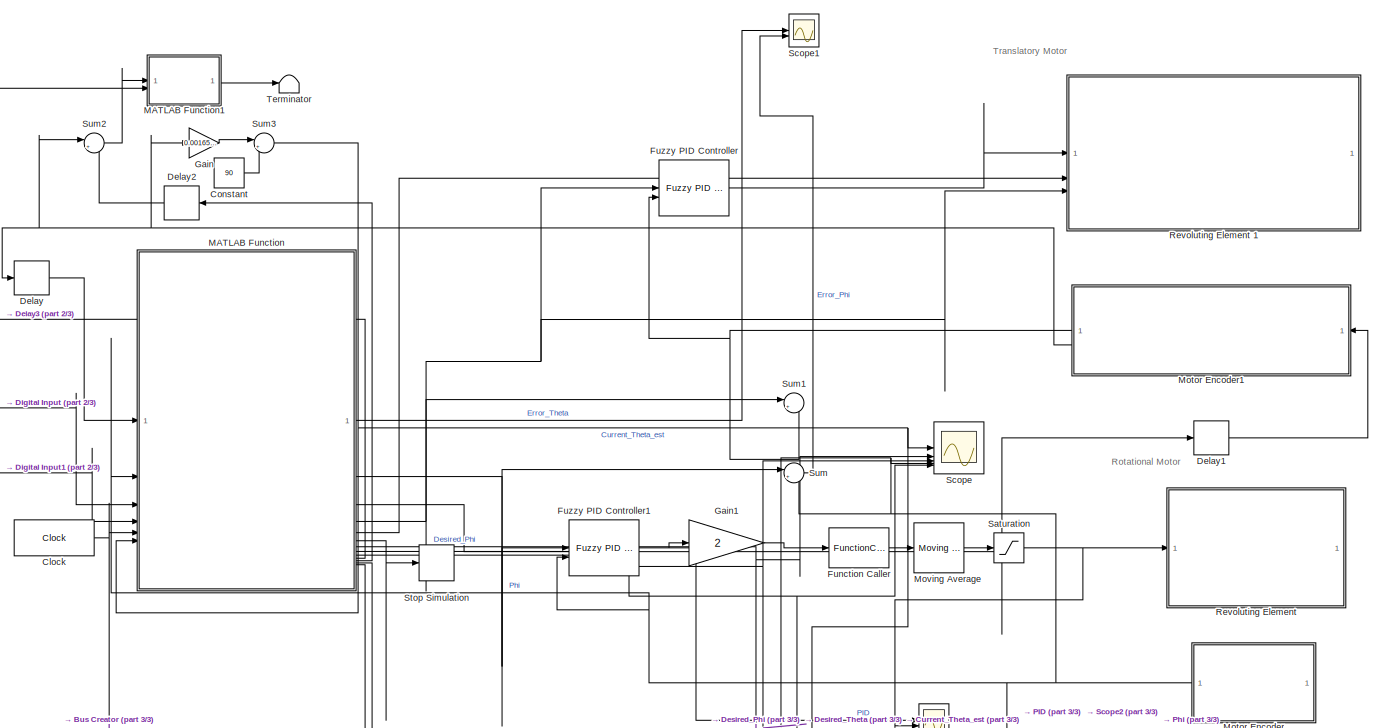
[diagram: root canvas - part 1/3, full width, middle band]
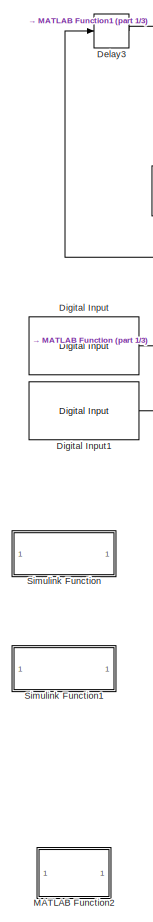
[diagram: root canvas - part 2/3, left side, full height]
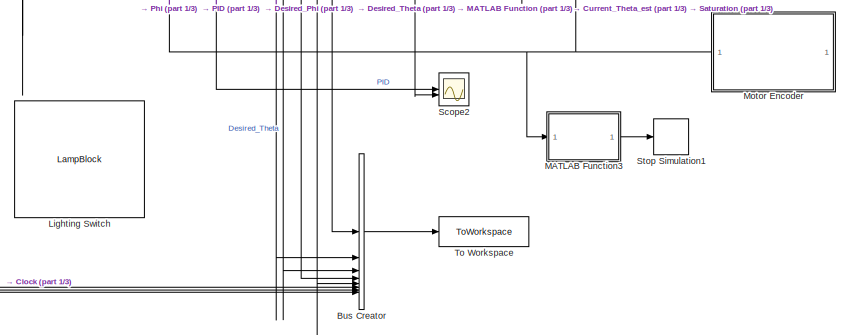
[diagram: root canvas - part 3/3, bottom right region]
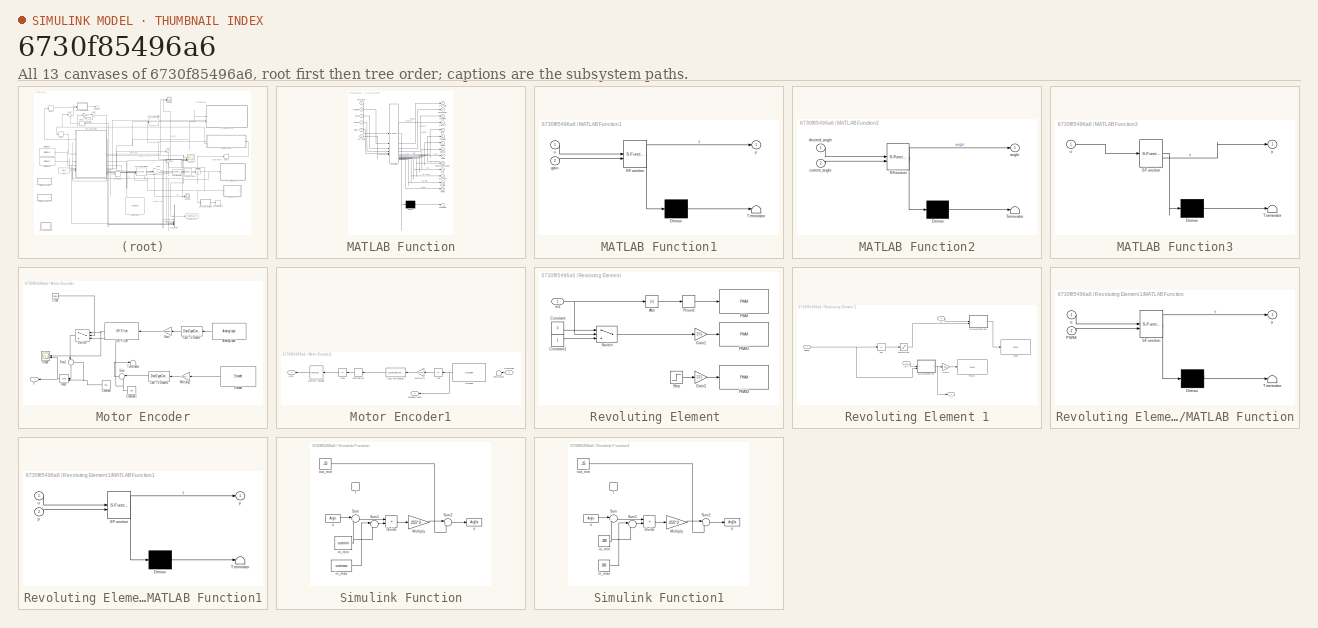
[diagram: thumbnail index - all 13 canvases of the model, root first then tree order]
MODEL slx_6730f85496a6
KIND model
CONFIG AbsTol = auto
CONFIG EnableMultiTasking = on
CONFIG FixedStep = 0.002
CONFIG MaxStep = auto
CONFIG MinStep = auto
CONFIG PreLoadFcn = % %--- PreStartFcn: initialize hold_flags.csv ---\n% csvFile = '<userpath>/Desktop/Thesis/Motor Characterization V2/FPID_COMBINED_V1/Flags/hold_flags.csv';   % ← adjust to your real path\n% fid = fopen(csvFile,'w');                      % open (or create) for overwrite\n% if fid < 0\n%     error('Cannot open flag file: %s', csvFile);\n% end\n% fprintf(fid, 'Index,SimTime_s\n');             % write heade...<+16ch>
CONFIG RelTol = 1e-3
CONFIG SampleTimeConstraint = Unconstrained
CONFIG SolverName = FixedStepDiscrete
CONFIG StartTime = 0.0
CONFIG StopTime = inf
BLOCK [BusCreator] Bus Creator
  DisplayOption = bar
  InheritFromInputs = on
  Inputs = 8
BLOCK [Clock] Clock
  DisplayTime = on
BLOCK [Constant] Constant
  Value = 90
BLOCK [Delay] Delay
  Commented = through
  DelayLength = 1
  InputPortMap = u0
BLOCK [Delay] Delay1
  DelayLength = 1
  InputPortMap = u0
BLOCK [Delay] Delay2
  DelayLength = 1
  InputPortMap = u0
  NameLocation = top
BLOCK [Delay] Delay3
  DelayLength = 1
  InputPortMap = u0
BLOCK [Reference] Digital Input  REF=arduinolib/Digital Input
  SourceBlock = arduinolib/Digital Input
  SourceType = Arduino Digital Input
BLOCK [Reference] Digital Input1  REF=arduinolib/Digital Input
  SourceBlock = arduinolib/Digital Input
  SourceType = Arduino Digital Input
BLOCK [FunctionCaller] Function Caller
  Commented = through
  FunctionPrototype = y = f(u)
  InputArgumentSpecifications = <Enter example>
  OutputArgumentSpecifications = <Enter example>
BLOCK [Reference] Fuzzy PID Controller  REF=fuzblock/Fuzzy PID Controller  (lib defined in mdl_858b3b3e7478)
  SourceBlock = fuzblock/Fuzzy PID Controller
  SourceType = Fuzzy PID Controller
BLOCK [Reference] Fuzzy PID Controller1  REF=fuzblock/Fuzzy PID Controller  (lib defined in mdl_858b3b3e7478)
  SourceBlock = fuzblock/Fuzzy PID Controller
  SourceType = Fuzzy PID Controller
BLOCK [Gain] Gain
  Gain = 0.001656075
BLOCK [Gain] Gain1
  Gain = 2
BLOCK [LampBlock] Lighting Switch
  Icon = LightingSwitch
  LabelPosition = Hide
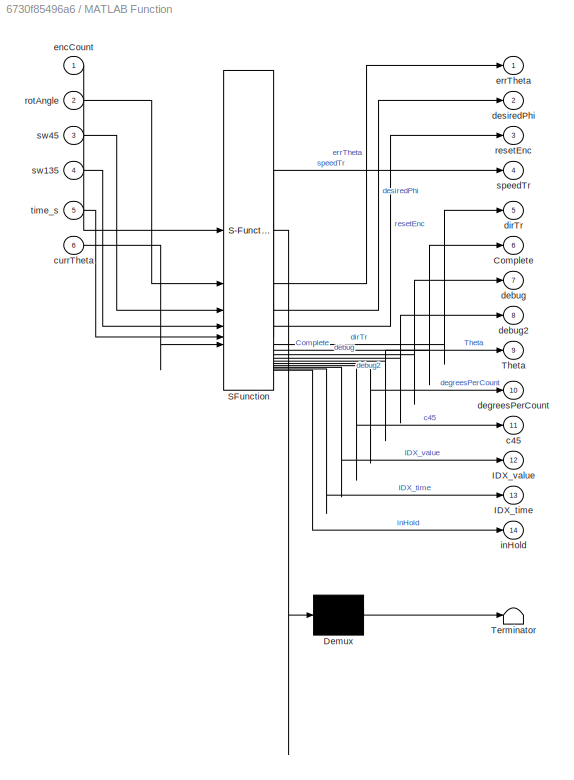
BLOCK [SubSystem] MATLAB Function
  ErrorFcn = Stateflow.Translate.translate
  PermitHierarchicalResolution = ExplicitOnly
  SFBlockType = MATLAB Function
  SystemSampleTime = 0.002
  TreatAsAtomicUnit = on
BLOCK [Demux] MATLAB Function/ Demux 
  Outputs = 1
BLOCK [S-Function] MATLAB Function/ SFunction 
  EnableBusSupport = on
  FunctionName = sf_sfun
  PortCounts = [6 15]
  SFcnIsStateOwnerBlock = off
  SFunctionDeploymentMode = off
  Tag = Stateflow S-Function 2
BLOCK [Terminator] MATLAB Function/ Terminator 
BLOCK [Outport] MATLAB Function/Complete
  Port = 6
BLOCK [Outport] MATLAB Function/IDX_time
  Port = 13
BLOCK [Outport] MATLAB Function/IDX_value
  Port = 12
BLOCK [Outport] MATLAB Function/Theta
  Port = 9
BLOCK [Outport] MATLAB Function/c45
  Port = 11
BLOCK [Inport] MATLAB Function/currTheta
  Port = 6
BLOCK [Outport] MATLAB Function/debug
  Port = 7
BLOCK [Outport] MATLAB Function/debug2
  Port = 8
BLOCK [Outport] MATLAB Function/degreesPerCount
  Port = 10
BLOCK [Outport] MATLAB Function/desiredPhi
  Port = 2
BLOCK [Outport] MATLAB Function/dirTr
  Port = 5
BLOCK [Inport] MATLAB Function/encCount
BLOCK [Outport] MATLAB Function/errTheta
BLOCK [Outport] MATLAB Function/inHold
  Port = 14
BLOCK [Outport] MATLAB Function/resetEnc
  Port = 3
BLOCK [Inport] MATLAB Function/rotAngle
  Port = 2
BLOCK [Outport] MATLAB Function/speedTr
  Port = 4
BLOCK [Inport] MATLAB Function/sw135
  Port = 4
BLOCK [Inport] MATLAB Function/sw45
  Port = 3
BLOCK [Inport] MATLAB Function/time_s
  Port = 5
BLOCK [SubSystem] MATLAB Function1
  ErrorFcn = Stateflow.Translate.translate
  PermitHierarchicalResolution = ExplicitOnly
  SFBlockType = MATLAB Function
  TreatAsAtomicUnit = on
BLOCK [Demux] MATLAB Function1/ Demux 
  Outputs = 1
BLOCK [S-Function] MATLAB Function1/ SFunction 
  EnableBusSupport = on
  FunctionName = sf_sfun
  PortCounts = [2 2]
  SFcnIsStateOwnerBlock = off
  SFunctionDeploymentMode = off
  Tag = Stateflow S-Function 3
BLOCK [Terminator] MATLAB Function1/ Terminator 
BLOCK [Inport] MATLAB Function1/gain
  Port = 2
BLOCK [Inport] MATLAB Function1/u
BLOCK [Outport] MATLAB Function1/y
BLOCK [SubSystem] MATLAB Function2
  Commented = on
  ErrorFcn = Stateflow.Translate.translate
  PermitHierarchicalResolution = ExplicitOnly
  SFBlockType = MATLAB Function
  TreatAsAtomicUnit = on
BLOCK [Demux] MATLAB Function2/ Demux 
  Outputs = 1
BLOCK [S-Function] MATLAB Function2/ SFunction 
  EnableBusSupport = on
  FunctionName = sf_sfun
  PortCounts = [2 2]
  SFcnIsStateOwnerBlock = off
  SFunctionDeploymentMode = off
  Tag = Stateflow S-Function 4
BLOCK [Terminator] MATLAB Function2/ Terminator 
BLOCK [Outport] MATLAB Function2/angle
BLOCK [Inport] MATLAB Function2/current_angle
  Port = 2
BLOCK [Inport] MATLAB Function2/desired_angle
BLOCK [SubSystem] MATLAB Function3
  ErrorFcn = Stateflow.Translate.translate
  PermitHierarchicalResolution = ExplicitOnly
  SFBlockType = MATLAB Function
  TreatAsAtomicUnit = on
BLOCK [Demux] MATLAB Function3/ Demux 
  Outputs = 1
BLOCK [S-Function] MATLAB Function3/ SFunction 
  EnableBusSupport = on
  FunctionName = sf_sfun
  PortCounts = [1 2]
  SFcnIsStateOwnerBlock = off
  SFunctionDeploymentMode = off
  Tag = Stateflow S-Function 5
BLOCK [Terminator] MATLAB Function3/ Terminator 
BLOCK [Inport] MATLAB Function3/u
BLOCK [Outport] MATLAB Function3/y
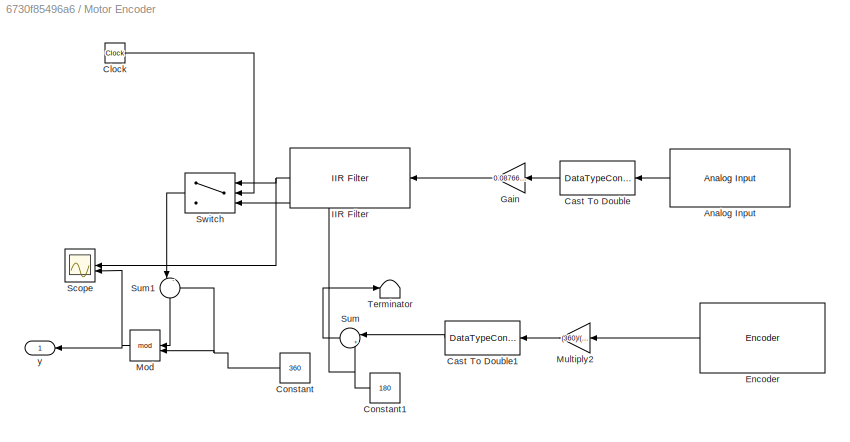
BLOCK [SubSystem] Motor Encoder
  NameLocation = top
BLOCK [Reference] Motor Encoder/Analog Input  REF=arduinolib/Analog Input
  NameLocation = top
  SourceBlock = arduinolib/Analog Input
  SourceType = Arduino Analog Input
BLOCK [DataTypeConversion] Motor Encoder/Cast To Double
  NameLocation = top
  OutDataTypeStr = double
  RndMeth = Floor
  SaturateOnIntegerOverflow = off
BLOCK [DataTypeConversion] Motor Encoder/Cast To Double1
  NameLocation = top
  OutDataTypeStr = double
  RndMeth = Floor
  SaturateOnIntegerOverflow = off
BLOCK [Clock] Motor Encoder/Clock
BLOCK [Constant] Motor Encoder/Constant
  NameLocation = top
  Value = 360
BLOCK [Constant] Motor Encoder/Constant1
  NameLocation = top
  Value = 180
BLOCK [Reference] Motor Encoder/Encoder  REF=arduinosensorlib/Encoder
  NameLocation = top
  SourceBlock = arduinosensorlib/Encoder
  SourceType = Arduino Rotary Encoder
BLOCK [Gain] Motor Encoder/Gain
  Gain = 0.087662177
  NameLocation = top
BLOCK [Reference] Motor Encoder/IIR Filter  REF=mcbcontrolslib/IIR Filter
  LibrarySourceBlock = mcbhdllib/Signal Management/IIR Filter
  NameLocation = top
  SourceBlock = mcbcontrolslib/IIR Filter
  SourceType = IIR Filter
BLOCK [Math] Motor Encoder/Mod
  NameLocation = top
  Operator = mod
BLOCK [Gain] Motor Encoder/Multiply2
  Gain = (360)/(270*64)
  NameLocation = top
BLOCK [Scope] Motor Encoder/Scope
  Floating = off
  NameLocation = top
  NumInputPorts = 2
  ScopeSpecificationString = Simulink.scopes.TimeScopeBlockCfg('CurrentConfiguration', extmgr.ConfigurationSet(extmgr.Configuration('Core','General UI',true),extmgr.Configuration('Core','Source UI',true),extmgr.Configuration('Sources','WiredSimulink',true,'DataLoggingVariableName','ScopeData1'),extmgr.Configuration('Visuals','Time Domain',true,'SerializedDisplays',{struct('MinYLimReal','-0.74745','MaxYLimReal','183.88276','YL...<+1545ch>
BLOCK [Sum] Motor Encoder/Sum
  Inputs = |++
  NameLocation = top
BLOCK [Sum] Motor Encoder/Sum1
  Inputs = |-+
  NameLocation = left
BLOCK [Switch] Motor Encoder/Switch
  Criteria = u2 > Threshold
  InputSameDT = off
  NameLocation = top
  SaturateOnIntegerOverflow = off
  Threshold = 1
BLOCK [Terminator] Motor Encoder/Terminator
BLOCK [Outport] Motor Encoder/y
BLOCK [SubSystem] Motor Encoder1
  NameLocation = top
BLOCK [Abs] Motor Encoder1/Abs
  NameLocation = top
  SaturateOnIntegerOverflow = off
BLOCK [Abs] Motor Encoder1/Abs1
  NameLocation = top
  SaturateOnIntegerOverflow = off
BLOCK [DataTypeConversion] Motor Encoder1/Cast To Double1
  NameLocation = top
  OutDataTypeStr = double
  RndMeth = Floor
  SaturateOnIntegerOverflow = off
BLOCK [Derivative] Motor Encoder1/Derivative
  NameLocation = top
BLOCK [Inport] Motor Encoder1/EncReset
  NameLocation = top
BLOCK [Reference] Motor Encoder1/Encoder  REF=arduinosensorlib/Encoder
  NameLocation = top
  SourceBlock = arduinosensorlib/Encoder
  SourceType = Arduino Rotary Encoder
BLOCK [Reference] Motor Encoder1/Moving Average  REF=dspstat3/Moving
Average
  NameLocation = top
  SourceBlock = dspstat3/Moving\nAverage
  SourceType = dsp.simulink.MovingAverage
BLOCK [Gain] Motor Encoder1/Multiply2
  Gain = 6/(7*302)
  NameLocation = top
BLOCK [Outport] Motor Encoder1/Out1
BLOCK [Terminator] Motor Encoder1/Terminator
  NameLocation = top
BLOCK [Outport] Motor Encoder1/encoderCount
  NameLocation = top
  Port = 2
BLOCK [Reference] Moving Average  REF=dspstat3/Moving
Average
  Commented = through
  SourceBlock = dspstat3/Moving\nAverage
  SourceType = dsp.simulink.MovingAverage
BLOCK [SubSystem] Revoluting Element 
BLOCK [Abs] Revoluting Element /Abs
  SaturateOnIntegerOverflow = off
BLOCK [Constant] Revoluting Element /Constant
  Value = 0
BLOCK [Constant] Revoluting Element /Constant1
BLOCK [Gain] Revoluting Element /Gain1
  Gain = 255
BLOCK [Gain] Revoluting Element /Gain2
  Commented = on
  Gain = 255
BLOCK [Inport] Revoluting Element /In1
BLOCK [Reference] Revoluting Element /PWM  REF=arduinolib/PWM
  SourceBlock = arduinolib/PWM
  SourceType = Arduino PWM
BLOCK [Reference] Revoluting Element /PWM1  REF=arduinolib/PWM
  SourceBlock = arduinolib/PWM
  SourceType = Arduino PWM
BLOCK [Reference] Revoluting Element /PWM2  REF=arduinolib/PWM
  Commented = on
  SourceBlock = arduinolib/PWM
  SourceType = Arduino PWM
BLOCK [Rounding] Revoluting Element /Round
  Operator = round
BLOCK [Step] Revoluting Element /Step
  Commented = on
  Time = 8
BLOCK [Switch] Revoluting Element /Switch
  Criteria = u2 > Threshold
  InputSameDT = off
  SaturateOnIntegerOverflow = off
BLOCK [SubSystem] Revoluting Element 1
BLOCK [Abs] Revoluting Element 1/Abs
  SaturateOnIntegerOverflow = off
BLOCK [Inport] Revoluting Element 1/Dir
  Port = 2
BLOCK [Gain] Revoluting Element 1/Gain1
  Gain = 255
BLOCK [SubSystem] Revoluting Element 1/MATLAB Function
  ErrorFcn = Stateflow.Translate.translate
  PermitHierarchicalResolution = ExplicitOnly
  SFBlockType = MATLAB Function
  TreatAsAtomicUnit = on
BLOCK [Demux] Revoluting Element 1/MATLAB Function/ Demux 
  Outputs = 1
BLOCK [S-Function] Revoluting Element 1/MATLAB Function/ SFunction 
  EnableBusSupport = on
  FunctionName = sf_sfun
  PortCounts = [2 2]
  SFcnIsStateOwnerBlock = off
  SFunctionDeploymentMode = off
  Tag = Stateflow S-Function 7
BLOCK [Terminator] Revoluting Element 1/MATLAB Function/ Terminator 
BLOCK [Inport] Revoluting Element 1/MATLAB Function/PWM
  Port = 2
BLOCK [Inport] Revoluting Element 1/MATLAB Function/u
BLOCK [Outport] Revoluting Element 1/MATLAB Function/y
BLOCK [SubSystem] Revoluting Element 1/MATLAB Function1
  ErrorFcn = Stateflow.Translate.translate
  PermitHierarchicalResolution = ExplicitOnly
  SFBlockType = MATLAB Function
  TreatAsAtomicUnit = on
BLOCK [Demux] Revoluting Element 1/MATLAB Function1/ Demux 
  Outputs = 1
BLOCK [S-Function] Revoluting Element 1/MATLAB Function1/ SFunction 
  EnableBusSupport = on
  FunctionName = sf_sfun
  PortCounts = [2 2]
  SFcnIsStateOwnerBlock = off
  SFunctionDeploymentMode = off
  Tag = Stateflow S-Function 1
BLOCK [Terminator] Revoluting Element 1/MATLAB Function1/ Terminator 
BLOCK [Inport] Revoluting Element 1/MATLAB Function1/p
  Port = 2
BLOCK [Inport] Revoluting Element 1/MATLAB Function1/u
BLOCK [Outport] Revoluting Element 1/MATLAB Function1/y
BLOCK [Reference] Revoluting Element 1/PWM  REF=arduinolib/PWM
  SourceBlock = arduinolib/PWM
  SourceType = Arduino PWM
BLOCK [Reference] Revoluting Element 1/PWM1  REF=arduinolib/PWM
  SourceBlock = arduinolib/PWM
  SourceType = Arduino PWM
BLOCK [Saturate] Revoluting Element 1/Saturation1
  LowerLimit = 0
  UpperLimit = 255
BLOCK [Inport] Revoluting Element 1/Speed
BLOCK [Inport] Revoluting Element 1/u
  Port = 3
BLOCK [Outport] Revoluting Element 1/y
BLOCK [Saturate] Saturation
  LowerLimit = -200
  UpperLimit = 200
BLOCK [Scope] Scope
  Floating = off
  NumInputPorts = 5
  ScopeSpecificationString = Simulink.scopes.TimeScopeBlockCfg('CurrentConfiguration', extmgr.ConfigurationSet(extmgr.Configuration('Core','General UI',true),extmgr.Configuration('Core','Source UI',true),extmgr.Configuration('Sources','WiredSimulink',true,'DataLoggingVariableName','ScopeData1'),extmgr.Configuration('Visuals','Time Domain',true,'SerializedDisplays',{struct('MinYLimReal','44.48408','MaxYLimReal','45.93761','YLa...<+1785ch>
BLOCK [Scope] Scope1
  Floating = off
  NumInputPorts = 2
  ScopeSpecificationString = Simulink.scopes.TimeScopeBlockCfg('CurrentConfiguration', extmgr.ConfigurationSet(extmgr.Configuration('Core','General UI',true),extmgr.Configuration('Core','Source UI',true),extmgr.Configuration('Sources','WiredSimulink',true,'DataLoggingVariableName','ScopeData1'),extmgr.Configuration('Visuals','Time Domain',true,'SerializedDisplays',{struct('MinYLimReal','-43.3315','MaxYLimReal','97.2752','YLab...<+1543ch>
BLOCK [Scope] Scope2
  Floating = off
  NumInputPorts = 2
  ScopeSpecificationString = Simulink.scopes.TimeScopeBlockCfg('CurrentConfiguration', extmgr.ConfigurationSet(extmgr.Configuration('Core','General UI',true),extmgr.Configuration('Core','Source UI',true),extmgr.Configuration('Sources','WiredSimulink',true,'DataLoggingVariableName','ScopeData2'),extmgr.Configuration('Visuals','Time Domain',true,'SerializedDisplays',{struct('MinYLimReal','-170.57955','MaxYLimReal','163.43652','...<+1616ch>
BLOCK [SubSystem] Simulink Function
  TreatAsAtomicUnit = on
BLOCK [Product] Simulink Function/Divide
  Inputs = */
BLOCK [Gain] Simulink Function/Multiply
  Gain = 255*2
BLOCK [Sum] Simulink Function/Sum
  Inputs = |+-
BLOCK [Sum] Simulink Function/Sum1
  Inputs = |+-
BLOCK [Sum] Simulink Function/Sum2
  Inputs = |++
BLOCK [TriggerPort] Simulink Function/f
  FunctionName = f
  FunctionVisibility = scoped
  IsSimulinkFunction = on
  StatesWhenEnabling = held
  TriggerType = function-call
  VariantControl = (inherit)
BLOCK [Constant] Simulink Function/in_max
  Value = outmax
BLOCK [Constant] Simulink Function/in_min
  Value = outmin
BLOCK [Constant] Simulink Function/out_min
  Value = -255
BLOCK [ArgIn] Simulink Function/u
  ArgumentName = u
  DisableCoverage = on
BLOCK [ArgOut] Simulink Function/y
  ArgumentName = y
  DisableCoverage = on
BLOCK [SubSystem] Simulink Function1
  TreatAsAtomicUnit = on
BLOCK [Product] Simulink Function1/Divide
  Inputs = */
BLOCK [Gain] Simulink Function1/Multiply
  Gain = 255*2
BLOCK [Sum] Simulink Function1/Sum
  Inputs = |+-
BLOCK [Sum] Simulink Function1/Sum1
  Inputs = |+-
BLOCK [Sum] Simulink Function1/Sum2
  Inputs = |++
BLOCK [TriggerPort] Simulink Function1/f
  FunctionName = g
  FunctionVisibility = scoped
  IsSimulinkFunction = on
  StatesWhenEnabling = held
  TriggerType = function-call
  VariantControl = (inherit)
BLOCK [Constant] Simulink Function1/in_max
  Value = 2000
BLOCK [Constant] Simulink Function1/in_min
  Value = -2000
BLOCK [Constant] Simulink Function1/out_min
  Value = -255
BLOCK [ArgIn] Simulink Function1/u
  ArgumentName = u
  DisableCoverage = on
BLOCK [ArgOut] Simulink Function1/y
  ArgumentName = y
  DisableCoverage = on
BLOCK [Stop] Stop Simulation
BLOCK [Stop] Stop Simulation1
BLOCK [Sum] Sum
  Inputs = |+-
BLOCK [Sum] Sum1
  Inputs = |+-
BLOCK [Sum] Sum2
  Inputs = |+-
BLOCK [Sum] Sum3
  Inputs = |++
BLOCK [Terminator] Terminator
BLOCK [ToWorkspace] To Workspace
  FixptAsFi = on
  MaxDataPoints = inf
  SampleTime = -1
  Save2DSignal = 2-D array (concatenate along first dimension)
  VariableName = IK_Data_Fuzzy
ANNOTATION (root): Rotational Motor
ANNOTATION (root): Translatory Motor
LINE Bus Creator:1 -> To Workspace:1
NET Clock:1 -> Bus Creator:6, MATLAB Function:5
LINE Constant:1 -> Sum3:2
LINE Delay1:1 -> Motor Encoder1:1
LINE Delay2:1 -> Sum2:2
LINE Delay3:1 -> MATLAB Function1:2
LINE Delay:1 -> MATLAB Function:1
LINE Digital Input1:1 -> MATLAB Function:4
LINE Digital Input:1 -> MATLAB Function:3
LINE Function Caller:1 -> Moving Average:1
NET Fuzzy PID Controller1:1 -> Gain1:1, Scope2:1
LINE Fuzzy PID Controller:1 -> Revoluting Element 1:1
LINE Gain1:1 -> Function Caller:1
LINE Gain:1 -> Sum3:1
LINE MATLAB Function1:1 -> Terminator:1
LINE MATLAB Function3:1 -> Stop Simulation1:1
LINE MATLAB Function:1 -> Scope1:1
LINE MATLAB Function:10 -> Delay3:1
LINE MATLAB Function:11 -> Delay2:1
LINE MATLAB Function:12 -> Bus Creator:7
LINE MATLAB Function:13 -> Bus Creator:8
NET MATLAB Function:2 -> Fuzzy PID Controller1:1, Sum:1
LINE MATLAB Function:3 -> Delay1:1
NET MATLAB Function:4 -> Fuzzy PID Controller:1, Revoluting Element 1:3, Sum1:1
LINE MATLAB Function:5 -> Revoluting Element 1:2
LINE MATLAB Function:6 -> Stop Simulation:1
NET MATLAB Function:7 -> Bus Creator:2, Scope:2
NET MATLAB Function:8 -> Bus Creator:3, Scope:3
NET MATLAB Function:9 -> Bus Creator:5, Scope:5
LINE Motor Encoder/Analog Input:1 -> Motor Encoder/Cast To Double:1
LINE Motor Encoder/Cast To Double1:1 -> Motor Encoder/Sum:1
LINE Motor Encoder/Cast To Double:1 -> Motor Encoder/Gain:1
LINE Motor Encoder/Clock:1 -> Motor Encoder/Switch:2
NET Motor Encoder/Constant1:1 -> Motor Encoder/Sum:2, Motor Encoder/Switch:3
NET Motor Encoder/Constant:1 -> Motor Encoder/Mod:2, Motor Encoder/Sum1:2
LINE Motor Encoder/Encoder:1 -> Motor Encoder/Multiply2:1
LINE Motor Encoder/Gain:1 -> Motor Encoder/IIR Filter:1
NET Motor Encoder/IIR Filter:1 -> Motor Encoder/Scope:1, Motor Encoder/Switch:1
NET Motor Encoder/Mod:1 -> Motor Encoder/Scope:2, Motor Encoder/y:1
LINE Motor Encoder/Multiply2:1 -> Motor Encoder/Cast To Double1:1
LINE Motor Encoder/Sum1:1 -> Motor Encoder/Mod:1
LINE Motor Encoder/Sum:1 -> Motor Encoder/Terminator:1
LINE Motor Encoder/Switch:1 -> Motor Encoder/Sum1:1
LINE Motor Encoder1/Abs1:1 -> Motor Encoder1/Moving Average:1
LINE Motor Encoder1/Abs:1 -> Motor Encoder1/Multiply2:1
LINE Motor Encoder1/Cast To Double1:1 -> Motor Encoder1/Derivative:1
LINE Motor Encoder1/Derivative:1 -> Motor Encoder1/Abs1:1
LINE Motor Encoder1/EncReset:1 -> Motor Encoder1/Terminator:1
NET Motor Encoder1/Encoder:1 -> Motor Encoder1/Abs:1, Motor Encoder1/encoderCount:1
LINE Motor Encoder1/Moving Average:1 -> Motor Encoder1/Out1:1
LINE Motor Encoder1/Multiply2:1 -> Motor Encoder1/Cast To Double1:1
NET Motor Encoder1:1 -> Fuzzy PID Controller:2, Sum1:2
NET Motor Encoder1:2 -> Delay:1, Gain:1, Sum2:1
NET Motor Encoder:1 -> Bus Creator:4, Fuzzy PID Controller1:2, MATLAB Function3:1, MATLAB Function:2, Scope:4, Sum:2
LINE Moving Average:1 -> Saturation:1
LINE Revoluting Element /Abs:1 -> Revoluting Element /Round:1
LINE Revoluting Element /Constant1:1 -> Revoluting Element /Switch:3
LINE Revoluting Element /Constant:1 -> Revoluting Element /Switch:1
LINE Revoluting Element /Gain1:1 -> Revoluting Element /PWM1:1
LINE Revoluting Element /Gain2:1 -> Revoluting Element /PWM2:1
NET Revoluting Element /In1:1 -> Revoluting Element /Abs:1, Revoluting Element /Switch:2
LINE Revoluting Element /Round:1 -> Revoluting Element /PWM:1
LINE Revoluting Element /Step:1 -> Revoluting Element /Gain2:1
LINE Revoluting Element /Switch:1 -> Revoluting Element /Gain1:1
LINE Revoluting Element 1/Abs:1 -> Revoluting Element 1/Saturation1:1
LINE Revoluting Element 1/Dir:1 -> Revoluting Element 1/MATLAB Function:1
LINE Revoluting Element 1/Gain1:1 -> Revoluting Element 1/PWM1:1
LINE Revoluting Element 1/MATLAB Function1:1 -> Revoluting Element 1/PWM:1
NET Revoluting Element 1/MATLAB Function:1 -> Revoluting Element 1/Gain1:1, Revoluting Element 1/y:1
LINE Revoluting Element 1/Saturation1:1 -> Revoluting Element 1/MATLAB Function1:2
NET Revoluting Element 1/Speed:1 -> Revoluting Element 1/Abs:1, Revoluting Element 1/MATLAB Function:2
LINE Revoluting Element 1/u:1 -> Revoluting Element 1/MATLAB Function1:1
NET Saturation:1 -> Revoluting Element :1, Scope2:2
LINE Simulink Function/Divide:1 -> Simulink Function/Multiply:1
LINE Simulink Function/Multiply:1 -> Simulink Function/Sum2:1
LINE Simulink Function/Sum1:1 -> Simulink Function/Divide:2
LINE Simulink Function/Sum2:1 -> Simulink Function/y:1
LINE Simulink Function/Sum:1 -> Simulink Function/Divide:1
LINE Simulink Function/in_max:1 -> Simulink Function/Sum1:1
NET Simulink Function/in_min:1 -> Simulink Function/Sum1:2, Simulink Function/Sum:2
LINE Simulink Function/out_min:1 -> Simulink Function/Sum2:2
LINE Simulink Function/u:1 -> Simulink Function/Sum:1
LINE Simulink Function1/Divide:1 -> Simulink Function1/Multiply:1
LINE Simulink Function1/Multiply:1 -> Simulink Function1/Sum2:1
LINE Simulink Function1/Sum1:1 -> Simulink Function1/Divide:2
LINE Simulink Function1/Sum2:1 -> Simulink Function1/y:1
LINE Simulink Function1/Sum:1 -> Simulink Function1/Divide:1
LINE Simulink Function1/in_max:1 -> Simulink Function1/Sum1:1
NET Simulink Function1/in_min:1 -> Simulink Function1/Sum1:2, Simulink Function1/Sum:2
LINE Simulink Function1/out_min:1 -> Simulink Function1/Sum2:2
LINE Simulink Function1/u:1 -> Simulink Function1/Sum:1
LINE Sum2:1 -> MATLAB Function1:1
NET Sum3:1 -> Bus Creator:1, MATLAB Function:6, Scope:1
LINE Sum:1 -> Scope1:2
note: NET lines group one-source signal fan-out (src -> all destinations, sorted); 1:1 wires keep LINE
CHART Revoluting Element 1/MATLAB Function1 states=1 transitions=1
  STATE_LABEL 'eML_blk_kernel()'
  STATE_LABEL 'SCRIPT:\nfunction y = fcn(u, p)\nif u == 0\n    y = u;\nelse\n    y = p;\nend\n    '
CHART MATLAB Function states=1 transitions=1
  STATE_LABEL 'eML_blk_kernel()'
  STATE_LABEL "SCRIPT:\nfunction [errTheta, desiredPhi, resetEnc, speedTr, dirTr, Complete, debug, debug2, Theta, degreesPerCount, c45, IDX_value, IDX_time, inHold] = headScanController(encCount, rotAngle, sw45, sw135, time_s, currTheta)\n% coder.extrinsic('set_param');\n% headScanController  Five-state controller for translatory (θ) and rotational (φ) motors.\n%\n% Inputs:\n%   encCount  – translatory motor encoder c...<+3608ch>"
CHART MATLAB Function1 states=1 transitions=1
  STATE_LABEL 'eML_blk_kernel()'
  STATE_LABEL 'SCRIPT:\nfunction y = fcn(u, gain)\n\n    y = u*gain;\n    \nend\n'
CHART MATLAB Function2 states=1 transitions=1
  STATE_LABEL 'eML_blk_kernel()'
  STATE_LABEL 'SCRIPT:\nfunction angle = step_plan_20deg(desired_angle, current_angle)\n%#codegen\n% Plans 20°-max steps whenever desired_angle changes.\n% Output holds the current waypoint until the motor reaches it,\n% then advances to the next. Final step snaps to desired if < 20°.\n%\n% Inputs : desired_angle [deg], current_angle [deg]   (0..360, no wrap)\n% Output : angle [deg] (commanded setpoint)\n\n% ---- Tunables...<+2460ch>'
CHART MATLAB Function3 states=1 transitions=1
  STATE_LABEL 'eML_blk_kernel()'
  STATE_LABEL 'SCRIPT:\nfunction y = fcn(u)\n    if (u>=270)||(u<=90)\n        y = 1;\n    else\n        y = 0;\n    end\nend\n'
CHART Revoluting Element 1/MATLAB Function states=1 transitions=1
  STATE_LABEL 'eML_blk_kernel()'
  STATE_LABEL 'SCRIPT:\nfunction y = fcn(u, PWM)\n    if (u == 1) && (PWM < 0)\n        y = 0;\n    elseif (u == 0) && (PWM < 0)\n        y = 1;\n    else\n        y = u;\n    end\n    % y = u; %debug\n\nend\n'
CHART  states=0 transitions=0
CHART  states=0 transitions=0
CHART  states=0 transitions=0
CHART  states=0 transitions=0
CHART  states=0 transitions=0
CHART  states=0 transitions=0
